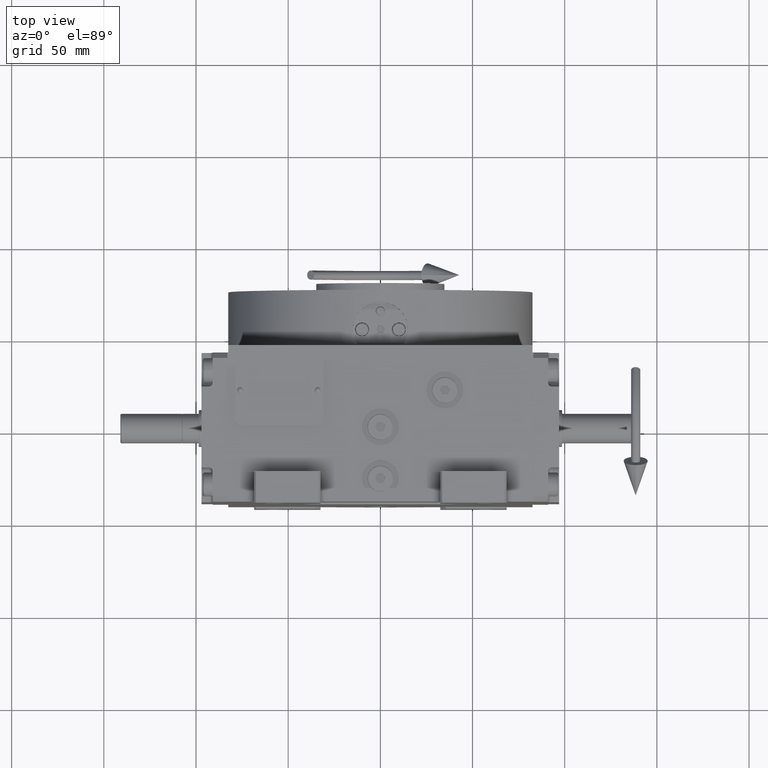
[diagram: clean part render]
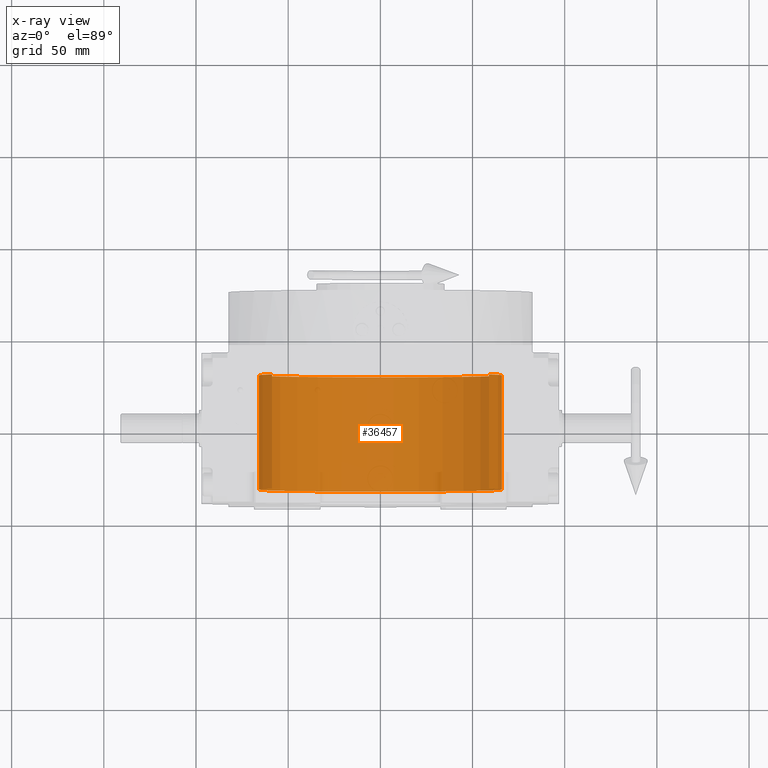
[diagram: x-ray — body ghosted, one internal face saturated and labeled with its STEP entity id]
A machine part, top view, then the same camera in x-ray: the body is ghosted and one INTERNAL B-rep face — a face not visible from any outside direction — is saturated and labeled: STEP entity #36457.
In plain terms, the highlighted cylindrical surface (partial cylindrical patch) has radius 66 mm, axis along (0, 1, 0).
Its self-contained STEP definition (entity closure, byte-faithful):
#703 = EDGE_CURVE ( 'NONE', #35576, #38437, #8095, .T. ) ;
#829 = EDGE_LOOP ( 'NONE', ( #10415, #48083, #42908, #18087 ) ) ;
#3861 = LINE ( 'NONE', #49134, #32137 ) ;
#7364 = CARTESIAN_POINT ( 'NONE',  ( 0.000000000000000000, -31.99999999999998579, 0.000000000000000000 ) ) ;
#7616 = AXIS2_PLACEMENT_3D ( 'NONE', #15018, #30865, #40235 ) ;
#8095 = LINE ( 'NONE', #48225, #53095 ) ;
#9996 = DIRECTION ( 'NONE',  ( -0.000000000000000000, 1.000000000000000000, -0.000000000000000000 ) ) ;
#10415 = ORIENTED_EDGE ( 'NONE', *, *, #703, .T. ) ;
#15018 = CARTESIAN_POINT ( 'NONE',  ( 0.000000000000000000, 30.00000000000001421, 0.000000000000000000 ) ) ;
#18087 = ORIENTED_EDGE ( 'NONE', *, *, #58364, .T. ) ;
#25254 = CARTESIAN_POINT ( 'NONE',  ( 58.78775382679628336, -31.99999999999998579, 30.00000000000000000 ) ) ;
#25799 = CARTESIAN_POINT ( 'NONE',  ( -58.78775382679628336, 30.00000000000001421, 30.00000000000000000 ) ) ;
#26620 = CARTESIAN_POINT ( 'NONE',  ( 58.78775382679628336, 30.00000000000001421, 30.00000000000000000 ) ) ;
#29755 = DIRECTION ( 'NONE',  ( 0.000000000000000000, 0.000000000000000000, 1.000000000000000000 ) ) ;
#30865 = DIRECTION ( 'NONE',  ( -0.000000000000000000, 1.000000000000000000, -0.000000000000000000 ) ) ;
#32137 = VECTOR ( 'NONE', #43664, 1000.000000000000000 ) ;
#32284 = CIRCLE ( 'NONE', #38455, 66.00000000000000000 ) ;
#33437 = FACE_OUTER_BOUND ( 'NONE', #829, .T. ) ;
#34620 = CYLINDRICAL_SURFACE ( 'NONE', #40681, 66.00000000000000000 ) ;
#35239 = EDGE_CURVE ( 'NONE', #62031, #38437, #32284, .T. ) ;
#35576 = VERTEX_POINT ( 'NONE', #25799 ) ;
#36457 = ADVANCED_FACE ( 'NONE', ( #33437 ), #34620, .F. ) ;
#38437 = VERTEX_POINT ( 'NONE', #60962 ) ;
#38455 = AXIS2_PLACEMENT_3D ( 'NONE', #7364, #46859, #47163 ) ;
#40235 = DIRECTION ( 'NONE',  ( 0.000000000000000000, 0.000000000000000000, 1.000000000000000000 ) ) ;
#40681 = AXIS2_PLACEMENT_3D ( 'NONE', #54333, #9996, #29755 ) ;
#42908 = ORIENTED_EDGE ( 'NONE', *, *, #53682, .T. ) ;
#43664 = DIRECTION ( 'NONE',  ( -0.000000000000000000, 1.000000000000000000, -0.000000000000000000 ) ) ;
#44808 = CIRCLE ( 'NONE', #7616, 66.00000000000000000 ) ;
#46859 = DIRECTION ( 'NONE',  ( -0.000000000000000000, 1.000000000000000000, -0.000000000000000000 ) ) ;
#47163 = DIRECTION ( 'NONE',  ( 0.000000000000000000, 0.000000000000000000, 1.000000000000000000 ) ) ;
#48083 = ORIENTED_EDGE ( 'NONE', *, *, #35239, .F. ) ;
#48225 = CARTESIAN_POINT ( 'NONE',  ( -58.78775382679628336, 98.15000000000000568, 30.00000000000000000 ) ) ;
#49134 = CARTESIAN_POINT ( 'NONE',  ( 58.78775382679628336, 98.15000000000000568, 30.00000000000000000 ) ) ;
#50327 = VERTEX_POINT ( 'NONE', #26620 ) ;
#53095 = VECTOR ( 'NONE', #53395, 1000.000000000000000 ) ;
#53395 = DIRECTION ( 'NONE',  ( 0.000000000000000000, -1.000000000000000000, 0.000000000000000000 ) ) ;
#53682 = EDGE_CURVE ( 'NONE', #62031, #50327, #3861, .T. ) ;
#54333 = CARTESIAN_POINT ( 'NONE',  ( 0.000000000000000000, 98.15000000000000568, 0.000000000000000000 ) ) ;
#58364 = EDGE_CURVE ( 'NONE', #50327, #35576, #44808, .T. ) ;
#60962 = CARTESIAN_POINT ( 'NONE',  ( -58.78775382679628336, -31.99999999999998579, 30.00000000000000000 ) ) ;
#62031 = VERTEX_POINT ( 'NONE', #25254 ) ;